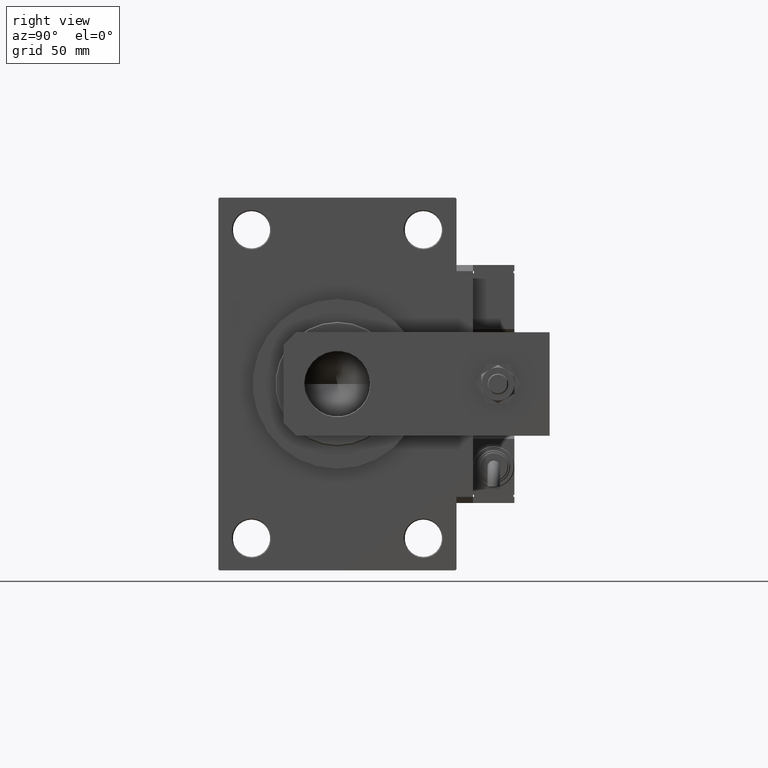
[diagram: clean part render]
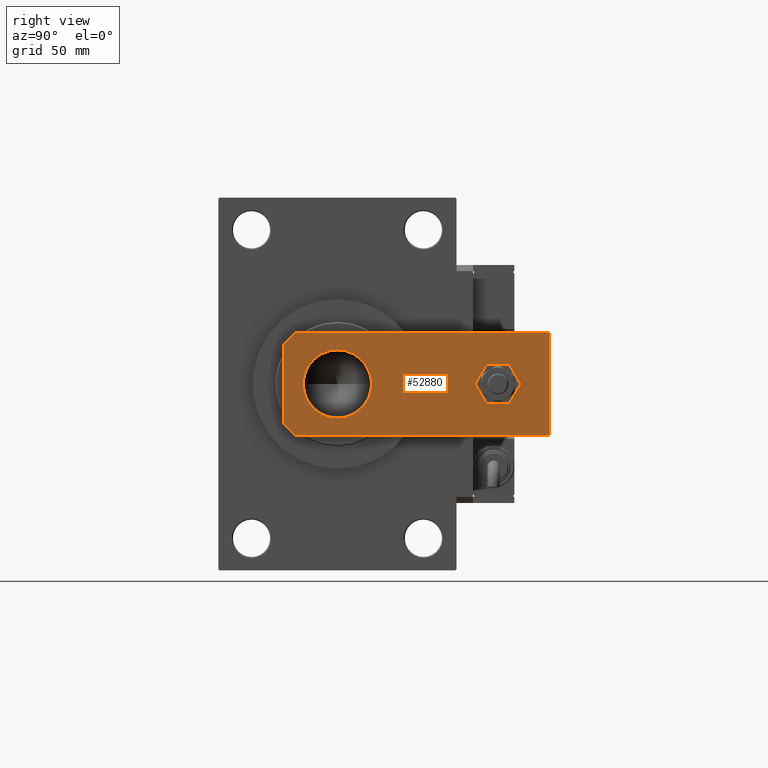
[diagram: same view with one face highlighted and labeled with its STEP entity id]
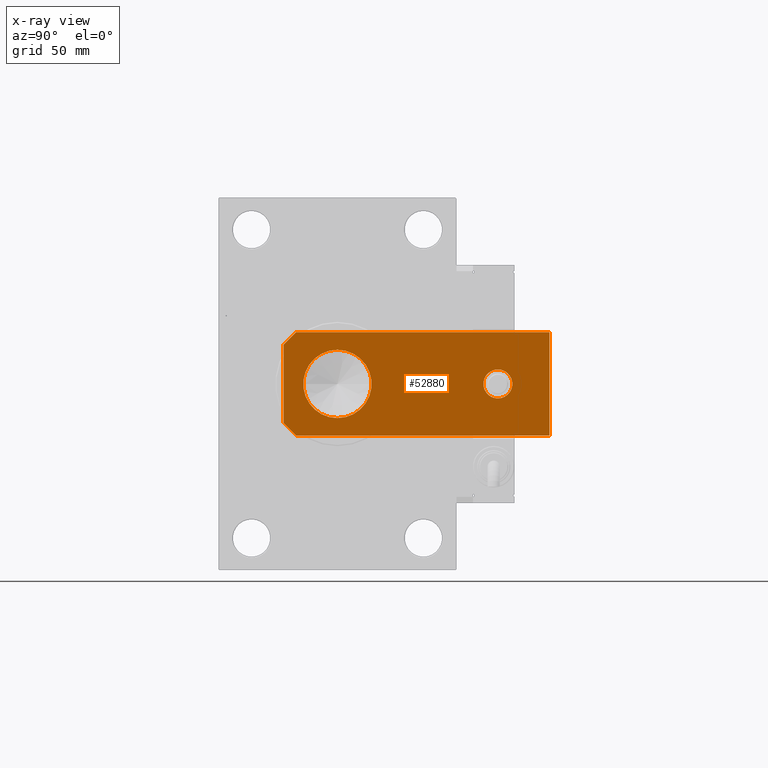
[diagram: x-ray of the same camera — body ghosted, the highlighted face saturated]
A machine part, right view. The second image highlights one B-rep face of the part: STEP entity #52880.
The next image is the same camera in x-ray: the body ghosted, the highlighted face saturated — about 0% of this face is hidden behind the body in this view.
In plain terms, the highlighted planar face has unit normal (-1, 0, 0).
Its self-contained STEP definition (entity closure, byte-faithful):
#452 = VERTEX_POINT ( 'NONE', #36691 ) ;
#1182 = CIRCLE ( 'NONE', #32571, 16.50000000000000000 ) ;
#2764 = EDGE_CURVE ( 'NONE', #32842, #49086, #44806, .T. ) ;
#2875 = VERTEX_POINT ( 'NONE', #33005 ) ;
#4170 = ORIENTED_EDGE ( 'NONE', *, *, #14053, .T. ) ;
#4663 = EDGE_LOOP ( 'NONE', ( #50964, #4948 ) ) ;
#4936 = DIRECTION ( 'NONE',  ( 1.000000000000000000, 0.000000000000000000, 0.000000000000000000 ) ) ;
#4948 = ORIENTED_EDGE ( 'NONE', *, *, #53018, .T. ) ;
#5368 = LINE ( 'NONE', #10426, #34848 ) ;
#5906 = AXIS2_PLACEMENT_3D ( 'NONE', #45039, #23736, #53474 ) ;
#5942 = DIRECTION ( 'NONE',  ( -0.7071067811865491270, -0.7071067811865459074, -0.000000000000000000 ) ) ;
#6061 = DIRECTION ( 'NONE',  ( 0.000000000000000000, 0.000000000000000000, 1.000000000000000000 ) ) ;
#6806 = VERTEX_POINT ( 'NONE', #47046 ) ;
#7637 = LINE ( 'NONE', #41867, #15456 ) ;
#7908 = CARTESIAN_POINT ( 'NONE',  ( -25.00000000000000000, 128.5000000000000000, 0.000000000000000000 ) ) ;
#8569 = AXIS2_PLACEMENT_3D ( 'NONE', #26263, #14199, #4936 ) ;
#8848 = CARTESIAN_POINT ( 'NONE',  ( -25.00000000000000000, 128.5000000000000000, 0.000000000000000000 ) ) ;
#9157 = VERTEX_POINT ( 'NONE', #20938 ) ;
#10426 = CARTESIAN_POINT ( 'NONE',  ( 25.00000000000001421, 6.000000000000019540, 0.000000000000000000 ) ) ;
#11363 = CARTESIAN_POINT ( 'NONE',  ( 25.00000000000000355, 128.5000000000000000, 0.000000000000000000 ) ) ;
#11478 = VECTOR ( 'NONE', #49810, 1000.000000000000000 ) ;
#12097 = EDGE_CURVE ( 'NONE', #9157, #30982, #47210, .T. ) ;
#12847 = EDGE_CURVE ( 'NONE', #30982, #38681, #46401, .T. ) ;
#14053 = EDGE_CURVE ( 'NONE', #9157, #2875, #5368, .T. ) ;
#14170 = VECTOR ( 'NONE', #51443, 1000.000000000000000 ) ;
#14199 = DIRECTION ( 'NONE',  ( -0.000000000000000000, 0.000000000000000000, 1.000000000000000000 ) ) ;
#15412 = CARTESIAN_POINT ( 'NONE',  ( -7.000000000000004441, 103.5000000000000142, 0.000000000000000000 ) ) ;
#15456 = VECTOR ( 'NONE', #47152, 1000.000000000000114 ) ;
#15838 = CARTESIAN_POINT ( 'NONE',  ( 16.50000000000000000, 26.00000000000001421, 0.000000000000000000 ) ) ;
#17028 = ORIENTED_EDGE ( 'NONE', *, *, #24075, .T. ) ;
#19544 = CARTESIAN_POINT ( 'NONE',  ( 0.000000000000000000, 26.00000000000001066, 0.000000000000000000 ) ) ;
#20938 = CARTESIAN_POINT ( 'NONE',  ( 25.00000000000001421, 6.000000000000018652, 0.000000000000000000 ) ) ;
#22409 = ORIENTED_EDGE ( 'NONE', *, *, #12097, .F. ) ;
#22503 = CARTESIAN_POINT ( 'NONE',  ( -18.99999999999999645, 0.000000000000000000, 0.000000000000000000 ) ) ;
#23181 = DIRECTION ( 'NONE',  ( 1.000000000000000000, 0.000000000000000000, 0.000000000000000000 ) ) ;
#23342 = AXIS2_PLACEMENT_3D ( 'NONE', #19544, #36955, #50108 ) ;
#23736 = DIRECTION ( 'NONE',  ( 0.000000000000000000, 0.000000000000000000, 1.000000000000000000 ) ) ;
#24075 = EDGE_CURVE ( 'NONE', #28608, #6806, #7637, .T. ) ;
#26263 = CARTESIAN_POINT ( 'NONE',  ( 0.000000000000000000, 0.000000000000000000, 0.000000000000000000 ) ) ;
#26388 = EDGE_CURVE ( 'NONE', #33658, #452, #1182, .T. ) ;
#27577 = ORIENTED_EDGE ( 'NONE', *, *, #51371, .F. ) ;
#28608 = VERTEX_POINT ( 'NONE', #22503 ) ;
#28688 = CARTESIAN_POINT ( 'NONE',  ( 7.000000000000004441, 103.5000000000000142, 0.000000000000000000 ) ) ;
#28697 = EDGE_LOOP ( 'NONE', ( #27577, #17028, #48149, #44814, #22409, #4170 ) ) ;
#29236 = CARTESIAN_POINT ( 'NONE',  ( 25.00000000000000355, 128.5000000000000000, 0.000000000000000000 ) ) ;
#30982 = VERTEX_POINT ( 'NONE', #29236 ) ;
#32269 = AXIS2_PLACEMENT_3D ( 'NONE', #44498, #6061, #23181 ) ;
#32571 = AXIS2_PLACEMENT_3D ( 'NONE', #54305, #36926, #49251 ) ;
#32842 = VERTEX_POINT ( 'NONE', #15412 ) ;
#33005 = CARTESIAN_POINT ( 'NONE',  ( 18.99999999999996803, 0.000000000000000000, 0.000000000000000000 ) ) ;
#33232 = ORIENTED_EDGE ( 'NONE', *, *, #26388, .T. ) ;
#33658 = VERTEX_POINT ( 'NONE', #15838 ) ;
#34707 = FACE_BOUND ( 'NONE', #39611, .T. ) ;
#34848 = VECTOR ( 'NONE', #5942, 1000.000000000000114 ) ;
#35357 = EDGE_CURVE ( 'NONE', #452, #33658, #42160, .T. ) ;
#36691 = CARTESIAN_POINT ( 'NONE',  ( -16.50000000000000000, 26.00000000000001066, 0.000000000000000000 ) ) ;
#36926 = DIRECTION ( 'NONE',  ( 0.000000000000000000, 0.000000000000000000, 1.000000000000000000 ) ) ;
#36955 = DIRECTION ( 'NONE',  ( 0.000000000000000000, 0.000000000000000000, 1.000000000000000000 ) ) ;
#38681 = VERTEX_POINT ( 'NONE', #8848 ) ;
#39331 = LINE ( 'NONE', #47440, #52448 ) ;
#39611 = EDGE_LOOP ( 'NONE', ( #45744, #33232 ) ) ;
#39618 = DIRECTION ( 'NONE',  ( 1.000000000000000000, 0.000000000000000000, 0.000000000000000000 ) ) ;
#39956 = CIRCLE ( 'NONE', #5906, 7.000000000000004441 ) ;
#41867 = CARTESIAN_POINT ( 'NONE',  ( -18.99999999999999645, 0.000000000000000000, 0.000000000000000000 ) ) ;
#41871 = LINE ( 'NONE', #7908, #45026 ) ;
#42160 = CIRCLE ( 'NONE', #23342, 16.50000000000000000 ) ;
#43119 = EDGE_CURVE ( 'NONE', #38681, #6806, #41871, .T. ) ;
#44498 = CARTESIAN_POINT ( 'NONE',  ( 2.336634443525536587E-16, 103.5000000000000142, 0.000000000000000000 ) ) ;
#44806 = CIRCLE ( 'NONE', #32269, 7.000000000000004441 ) ;
#44814 = ORIENTED_EDGE ( 'NONE', *, *, #12847, .F. ) ;
#45026 = VECTOR ( 'NONE', #50569, 1000.000000000000000 ) ;
#45039 = CARTESIAN_POINT ( 'NONE',  ( 2.336634443525536587E-16, 103.5000000000000142, 0.000000000000000000 ) ) ;
#45744 = ORIENTED_EDGE ( 'NONE', *, *, #35357, .T. ) ;
#46401 = LINE ( 'NONE', #11363, #11478 ) ;
#47046 = CARTESIAN_POINT ( 'NONE',  ( -25.00000000000001421, 6.000000000000047073, 0.000000000000000000 ) ) ;
#47152 = DIRECTION ( 'NONE',  ( -0.7071067811865459074, 0.7071067811865491270, -0.000000000000000000 ) ) ;
#47210 = LINE ( 'NONE', #55120, #14170 ) ;
#47440 = CARTESIAN_POINT ( 'NONE',  ( -25.00000000000001421, 0.000000000000000000, 0.000000000000000000 ) ) ;
#47871 = FACE_OUTER_BOUND ( 'NONE', #28697, .T. ) ;
#48149 = ORIENTED_EDGE ( 'NONE', *, *, #43119, .F. ) ;
#48436 = PLANE ( 'NONE',  #8569 ) ;
#49086 = VERTEX_POINT ( 'NONE', #28688 ) ;
#49251 = DIRECTION ( 'NONE',  ( 1.000000000000000000, 0.000000000000000000, 0.000000000000000000 ) ) ;
#49810 = DIRECTION ( 'NONE',  ( -1.000000000000000000, 0.000000000000000000, 0.000000000000000000 ) ) ;
#50108 = DIRECTION ( 'NONE',  ( 1.000000000000000000, 0.000000000000000000, 0.000000000000000000 ) ) ;
#50569 = DIRECTION ( 'NONE',  ( -1.079983486989451872E-16, -1.000000000000000000, 0.000000000000000000 ) ) ;
#50964 = ORIENTED_EDGE ( 'NONE', *, *, #2764, .T. ) ;
#51371 = EDGE_CURVE ( 'NONE', #28608, #2875, #39331, .T. ) ;
#51443 = DIRECTION ( 'NONE',  ( -8.099876152420888730E-17, 1.000000000000000000, 0.000000000000000000 ) ) ;
#52448 = VECTOR ( 'NONE', #39618, 1000.000000000000000 ) ;
#52642 = FACE_BOUND ( 'NONE', #4663, .T. ) ;
#52880 = ADVANCED_FACE ( 'NONE', ( #47871, #52642, #34707 ), #48436, .F. ) ;
#53018 = EDGE_CURVE ( 'NONE', #49086, #32842, #39956, .T. ) ;
#53474 = DIRECTION ( 'NONE',  ( 1.000000000000000000, 0.000000000000000000, 0.000000000000000000 ) ) ;
#54305 = CARTESIAN_POINT ( 'NONE',  ( 0.000000000000000000, 26.00000000000001066, 0.000000000000000000 ) ) ;
#55120 = CARTESIAN_POINT ( 'NONE',  ( 25.00000000000001421, 0.000000000000000000, 0.000000000000000000 ) ) ;